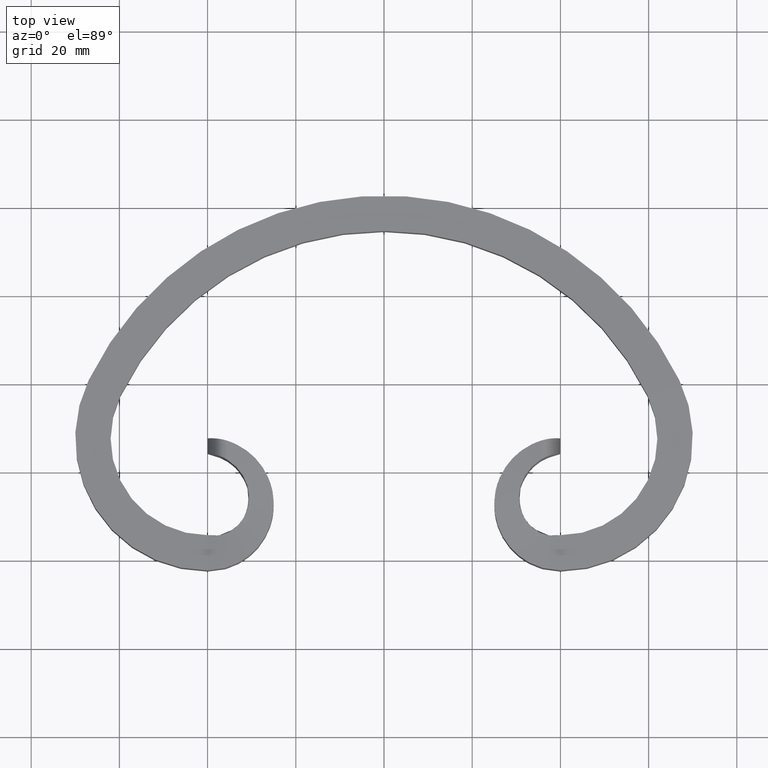
[diagram: clean part render]
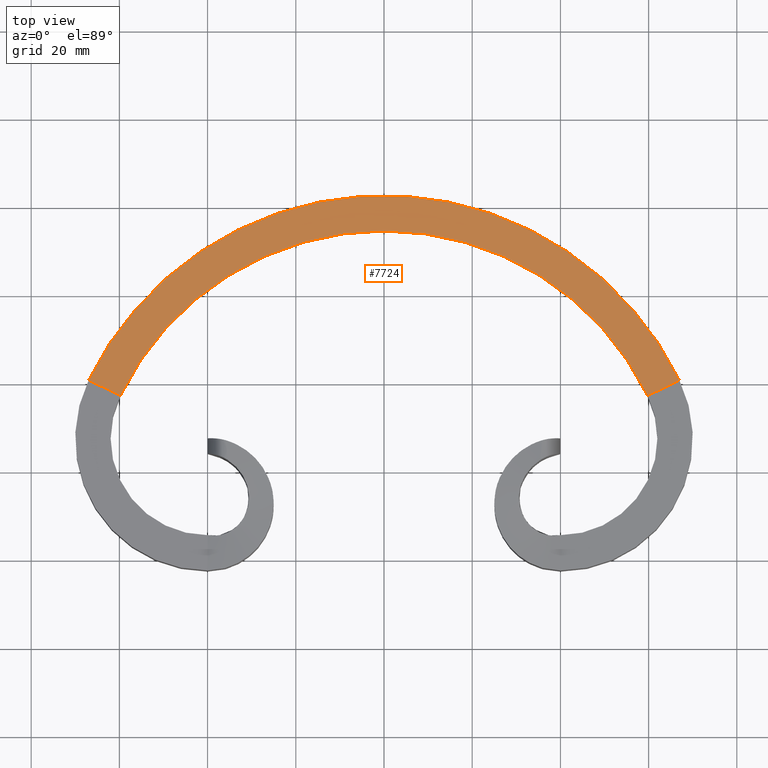
[diagram: same view with one face highlighted and labeled with its STEP entity id]
A machine part, top view. The second image highlights one B-rep face of the part: STEP entity #7724.
In plain terms, the highlighted planar face has unit normal (0, 0, 1).
Its self-contained STEP definition (entity closure, byte-faithful):
#970 = AXIS2_PLACEMENT_3D ( 'NONE', #8950, #3271, #9895 ) ;
#984 = EDGE_CURVE ( 'NONE', #11109, #1830, #4014, .T. ) ;
#999 = EDGE_CURVE ( 'NONE', #7426, #10380, #1248, .T. ) ;
#1087 = AXIS2_PLACEMENT_3D ( 'NONE', #3259, #7098, #11667 ) ;
#1248 = LINE ( 'NONE', #8384, #5055 ) ;
#1456 = ORIENTED_EDGE ( 'NONE', *, *, #984, .F. ) ;
#1675 = CARTESIAN_POINT ( 'NONE',  ( 59.77528089887638885, -2.859550561797718160, 8.000000000000001776 ) ) ;
#1793 = CARTESIAN_POINT ( 'NONE',  ( 59.77528089887640306, -2.859550561797711499, 8.000000000000000000 ) ) ;
#1830 = VERTEX_POINT ( 'NONE', #7355 ) ;
#2173 = ORIENTED_EDGE ( 'NONE', *, *, #11680, .T. ) ;
#2280 = CARTESIAN_POINT ( 'NONE',  ( 66.96629213483143417, 0.6460674157303912812, 8.000000000000000000 ) ) ;
#2672 = FACE_OUTER_BOUND ( 'NONE', #10734, .T. ) ;
#2753 = PLANE ( 'NONE',  #8932 ) ;
#2817 = ORIENTED_EDGE ( 'NONE', *, *, #4576, .F. ) ;
#2983 = CARTESIAN_POINT ( 'NONE',  ( -59.77528089887640306, -2.859550561797725265, 8.000000000000001776 ) ) ;
#3259 = CARTESIAN_POINT ( 'NONE',  ( 0.000000000000000000, -32.00000000000002842, 8.000000000000001776 ) ) ;
#3271 = DIRECTION ( 'NONE',  ( 0.000000000000000000, 0.000000000000000000, 1.000000000000000000 ) ) ;
#4014 = LINE ( 'NONE', #6413, #9238 ) ;
#4576 = EDGE_CURVE ( 'NONE', #7426, #11109, #6695, .T. ) ;
#5055 = VECTOR ( 'NONE', #10257, 999.9999999999998863 ) ;
#6325 = DIRECTION ( 'NONE',  ( -0.8988764044943816645, 0.4382022471910119177, -2.168404344971008868E-16 ) ) ;
#6413 = CARTESIAN_POINT ( 'NONE',  ( -59.77528089887641727, -2.859550561797707946, 8.000000000000001776 ) ) ;
#6695 = CIRCLE ( 'NONE', #1087, 66.50000000000002842 ) ;
#7098 = DIRECTION ( 'NONE',  ( 0.000000000000000000, 0.000000000000000000, 1.000000000000000000 ) ) ;
#7355 = CARTESIAN_POINT ( 'NONE',  ( -66.96629213483147680, 0.6460674157303738507, 8.000000000000000000 ) ) ;
#7426 = VERTEX_POINT ( 'NONE', #1675 ) ;
#7724 = ADVANCED_FACE ( 'NONE', ( #2672 ), #2753, .T. ) ;
#8033 = ORIENTED_EDGE ( 'NONE', *, *, #999, .T. ) ;
#8384 = CARTESIAN_POINT ( 'NONE',  ( 59.77528089887641016, -2.859550561797704393, 8.000000000000001776 ) ) ;
#8431 = DIRECTION ( 'NONE',  ( 0.000000000000000000, 0.000000000000000000, 1.000000000000000000 ) ) ;
#8932 = AXIS2_PLACEMENT_3D ( 'NONE', #1793, #8431, #9379 ) ;
#8950 = CARTESIAN_POINT ( 'NONE',  ( 0.000000000000000000, -32.00000000000002842, 8.000000000000000000 ) ) ;
#9238 = VECTOR ( 'NONE', #6325, 1000.000000000000000 ) ;
#9379 = DIRECTION ( 'NONE',  ( 1.000000000000000000, 0.000000000000000000, -0.000000000000000000 ) ) ;
#9895 = DIRECTION ( 'NONE',  ( 0.8988764044943815534, 0.4382022471910120287, 0.000000000000000000 ) ) ;
#10257 = DIRECTION ( 'NONE',  ( 0.8988764044943815534, 0.4382022471910124728, -2.168404344971009115E-16 ) ) ;
#10380 = VERTEX_POINT ( 'NONE', #2280 ) ;
#10734 = EDGE_LOOP ( 'NONE', ( #2173, #1456, #2817, #8033 ) ) ;
#11109 = VERTEX_POINT ( 'NONE', #2983 ) ;
#11308 = CIRCLE ( 'NONE', #970, 74.50000000000004263 ) ;
#11667 = DIRECTION ( 'NONE',  ( 0.8988764044943816645, 0.4382022471910120842, 0.000000000000000000 ) ) ;
#11680 = EDGE_CURVE ( 'NONE', #10380, #1830, #11308, .T. ) ;